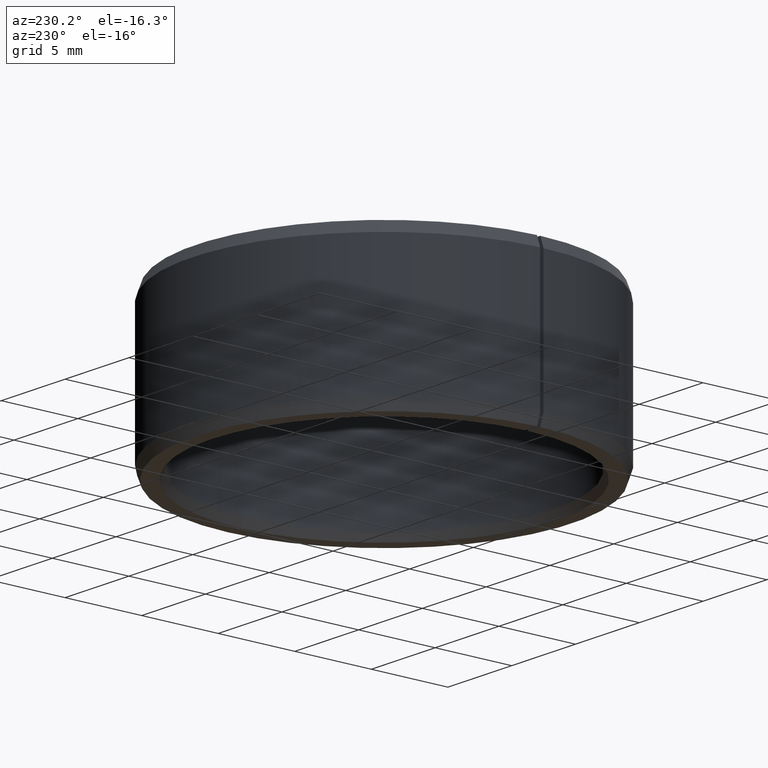
[diagram: clean part render]
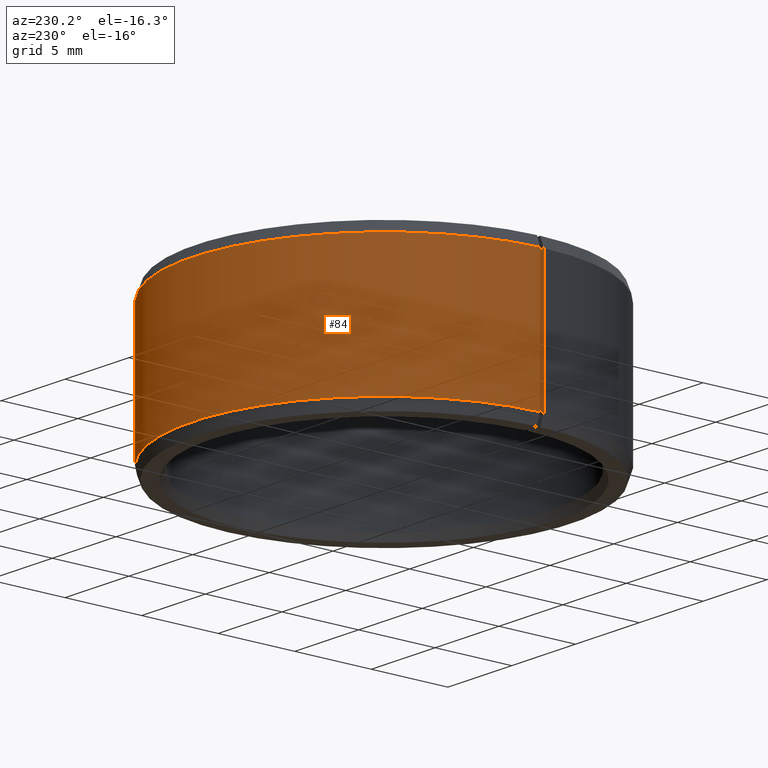
[diagram: same view with one face highlighted and labeled with its STEP entity id]
A machine part, auxiliary view. The second image highlights one B-rep face of the part: STEP entity #84.
In plain terms, the highlighted cylindrical surface (partial cylindrical patch) has radius 12.5 mm, axis along (0, -0, 1).
Its self-contained STEP definition (entity closure, byte-faithful):
#84=ADVANCED_FACE('',(#110),#111,.T.);
#110=FACE_OUTER_BOUND('',#142,.T.);
#111=CYLINDRICAL_SURFACE('',#143,12.5);
#142=EDGE_LOOP('',(#221,#222,#223,#224));
#143=AXIS2_PLACEMENT_3D('',#225,#226,#227);
#221=ORIENTED_EDGE('',*,*,#291,.T.);
#222=ORIENTED_EDGE('',*,*,#307,.T.);
#223=ORIENTED_EDGE('',*,*,#308,.T.);
#224=ORIENTED_EDGE('',*,*,#309,.F.);
#225=CARTESIAN_POINT('',(3.09684024814451E-015,-3.50247784057173E-015,5.0));
#226=DIRECTION('',(5.48707263966375E-016,-6.09939603923743E-016,1.0));
#227=DIRECTION('',(-1.0,1.89882151931499E-015,5.48707263966376E-016));
#291=EDGE_CURVE('',#332,#339,#340,.T.);
#307=EDGE_CURVE('',#339,#363,#365,.T.);
#308=EDGE_CURVE('',#363,#366,#367,.T.);
#309=EDGE_CURVE('',#332,#366,#368,.T.);
#332=VERTEX_POINT('',#398);
#339=VERTEX_POINT('',#407);
#340=LINE('',#408,#409);
#363=VERTEX_POINT('',#440);
#365=CIRCLE('',#443,12.5);
#366=VERTEX_POINT('',#444);
#367=LINE('',#445,#446);
#368=CIRCLE('',#447,12.5);
#398=CARTESIAN_POINT('',(12.5,-3.13912956278153E-014,9.29999999999999));
#407=CARTESIAN_POINT('',(12.5,-2.64305454148729E-014,0.699999999999994));
#408=CARTESIAN_POINT('',(12.5,-2.87685553309432E-014,4.99999999999999));
#409=VECTOR('',#485,1.0);
#440=CARTESIAN_POINT('',(-12.4980961894549,0.218155080466068,0.700000000000008));
#443=AXIS2_PLACEMENT_3D('',#513,#514,#515);
#444=CARTESIAN_POINT('',(-12.4980961894549,0.218155080466063,9.30000000000001));
#445=CARTESIAN_POINT('',(-12.4980961894549,0.218155080466068,0.700000000000008));
#446=VECTOR('',#516,10.0);
#447=AXIS2_PLACEMENT_3D('',#517,#518,#519);
#485=DIRECTION('',(-5.48707263966375E-016,6.09939603923743E-016,-1.0));
#513=CARTESIAN_POINT('',(7.373990130891E-016,-1.14303660551632E-015,0.700000000000001));
#514=DIRECTION('',(5.48707263966375E-016,-6.09939603923743E-016,1.0));
#515=DIRECTION('',(-1.0,1.89882151931499E-015,5.48707263966376E-016));
#516=DIRECTION('',(5.49775915650417E-016,-5.48716589948337E-016,1.0));
#517=CARTESIAN_POINT('',(5.45628148319992E-015,-5.86191907562715E-015,9.3));
#518=DIRECTION('',(5.48707263966375E-016,-6.09939603923743E-016,1.0));
#519=DIRECTION('',(-1.0,1.89882151931499E-015,5.48707263966376E-016));